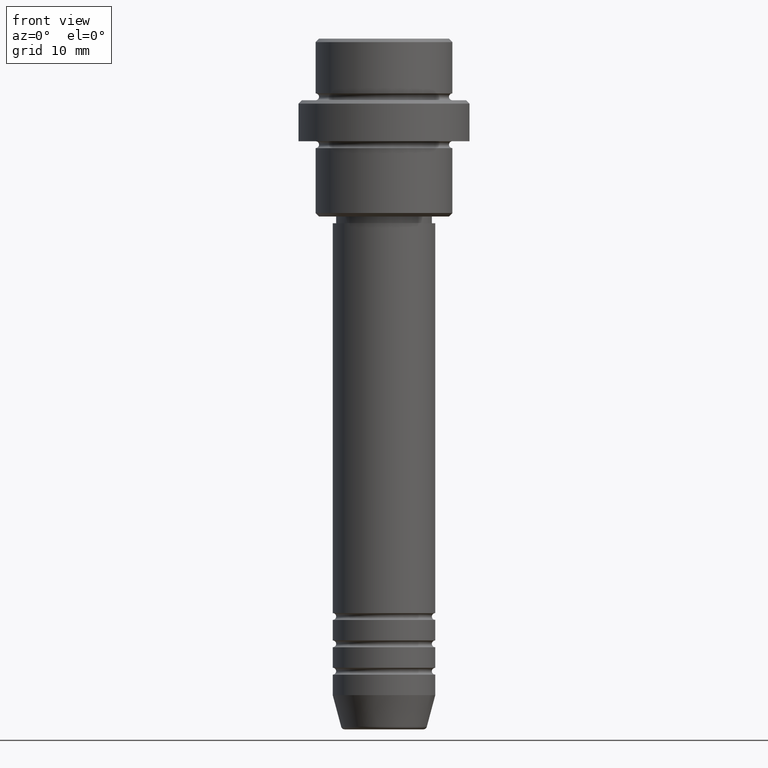
[diagram: clean part render]
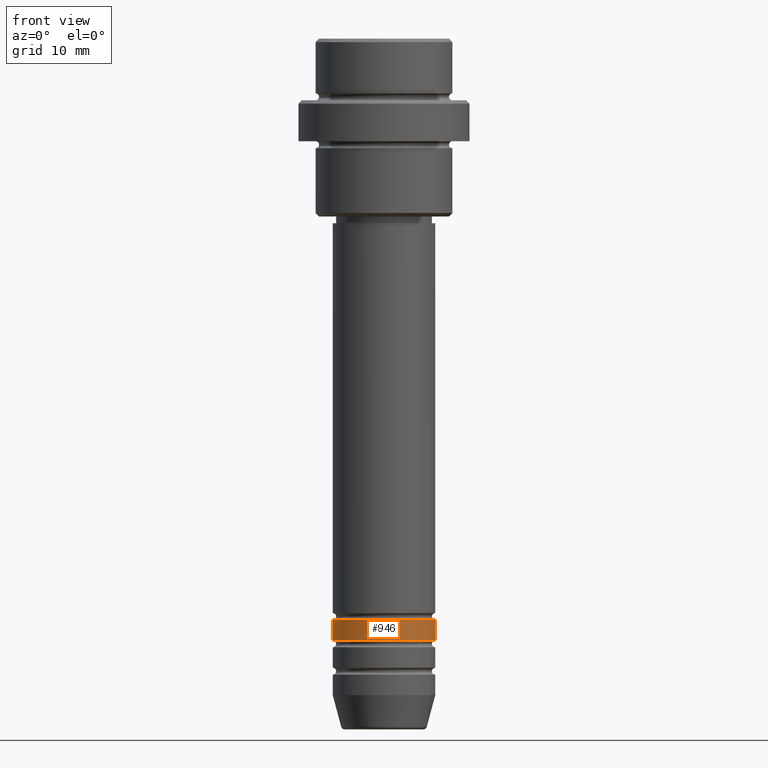
[diagram: same view with one face highlighted and labeled with its STEP entity id]
A machine part, front view. The second image highlights one B-rep face of the part: STEP entity #946.
In plain terms, the highlighted cylindrical surface (partial cylindrical patch) has radius 7.5 mm, axis along (-0, -0, 1).
Its self-contained STEP definition (entity closure, byte-faithful):
#70 = CARTESIAN_POINT ( 'NONE',  ( 0.000000000000000000, 0.000000000000000000, -84.99999999999988631 ) ) ;
#155 = CARTESIAN_POINT ( 'NONE',  ( 0.000000000000000000, 0.000000000000000000, 0.000000000000000000 ) ) ;
#165 = VECTOR ( 'NONE', #963, 1000.000000000000000 ) ;
#181 = EDGE_CURVE ( 'NONE', #680, #886, #342, .T. ) ;
#274 = CARTESIAN_POINT ( 'NONE',  ( -7.500000000000000000, 9.184850993605147944E-16, -87.99999999999988631 ) ) ;
#278 = ORIENTED_EDGE ( 'NONE', *, *, #631, .F. ) ;
#311 = CARTESIAN_POINT ( 'NONE',  ( -7.500000000000000000, 9.184850993605147944E-16, -84.99999999999988631 ) ) ;
#342 = CIRCLE ( 'NONE', #842, 7.500000000000000000 ) ;
#364 = DIRECTION ( 'NONE',  ( -0.000000000000000000, -0.000000000000000000, 1.000000000000000000 ) ) ;
#441 = CARTESIAN_POINT ( 'NONE',  ( 0.000000000000000000, 0.000000000000000000, -87.99999999999988631 ) ) ;
#481 = DIRECTION ( 'NONE',  ( 1.000000000000000000, 0.000000000000000000, 0.000000000000000000 ) ) ;
#499 = LINE ( 'NONE', #1369, #1162 ) ;
#502 = CARTESIAN_POINT ( 'NONE',  ( -7.500000000000000000, 9.184850993605147944E-16, 0.000000000000000000 ) ) ;
#596 = AXIS2_PLACEMENT_3D ( 'NONE', #155, #897, #481 ) ;
#631 = EDGE_CURVE ( 'NONE', #896, #680, #1059, .T. ) ;
#680 = VERTEX_POINT ( 'NONE', #311 ) ;
#842 = AXIS2_PLACEMENT_3D ( 'NONE', #70, #364, #1232 ) ;
#878 = DIRECTION ( 'NONE',  ( 1.000000000000000000, 0.000000000000000000, 0.000000000000000000 ) ) ;
#886 = VERTEX_POINT ( 'NONE', #1183 ) ;
#896 = VERTEX_POINT ( 'NONE', #274 ) ;
#897 = DIRECTION ( 'NONE',  ( -0.000000000000000000, -0.000000000000000000, 1.000000000000000000 ) ) ;
#916 = CIRCLE ( 'NONE', #938, 7.500000000000000000 ) ;
#926 = EDGE_LOOP ( 'NONE', ( #278, #1279, #1299, #1104 ) ) ;
#932 = VERTEX_POINT ( 'NONE', #1014 ) ;
#938 = AXIS2_PLACEMENT_3D ( 'NONE', #441, #1201, #878 ) ;
#946 = ADVANCED_FACE ( 'NONE', ( #1107 ), #1244, .T. ) ;
#963 = DIRECTION ( 'NONE',  ( -0.000000000000000000, -0.000000000000000000, 1.000000000000000000 ) ) ;
#1014 = CARTESIAN_POINT ( 'NONE',  ( 7.500000000000000000, 0.000000000000000000, -87.99999999999988631 ) ) ;
#1059 = LINE ( 'NONE', #502, #165 ) ;
#1094 = EDGE_CURVE ( 'NONE', #932, #886, #499, .T. ) ;
#1104 = ORIENTED_EDGE ( 'NONE', *, *, #181, .F. ) ;
#1107 = FACE_OUTER_BOUND ( 'NONE', #926, .T. ) ;
#1162 = VECTOR ( 'NONE', #1188, 1000.000000000000000 ) ;
#1183 = CARTESIAN_POINT ( 'NONE',  ( 7.500000000000000000, 0.000000000000000000, -84.99999999999988631 ) ) ;
#1188 = DIRECTION ( 'NONE',  ( -0.000000000000000000, -0.000000000000000000, 1.000000000000000000 ) ) ;
#1201 = DIRECTION ( 'NONE',  ( -0.000000000000000000, -0.000000000000000000, 1.000000000000000000 ) ) ;
#1232 = DIRECTION ( 'NONE',  ( 1.000000000000000000, 0.000000000000000000, 0.000000000000000000 ) ) ;
#1238 = EDGE_CURVE ( 'NONE', #896, #932, #916, .T. ) ;
#1244 = CYLINDRICAL_SURFACE ( 'NONE', #596, 7.500000000000000000 ) ;
#1279 = ORIENTED_EDGE ( 'NONE', *, *, #1238, .T. ) ;
#1299 = ORIENTED_EDGE ( 'NONE', *, *, #1094, .T. ) ;
#1369 = CARTESIAN_POINT ( 'NONE',  ( 7.500000000000000000, 0.000000000000000000, 0.000000000000000000 ) ) ;